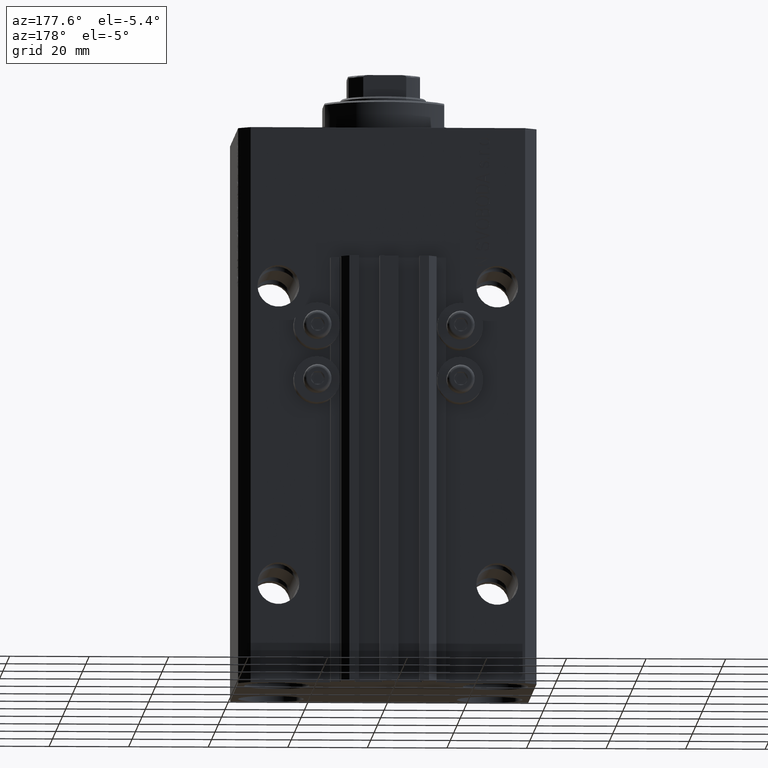
[diagram: clean part render]
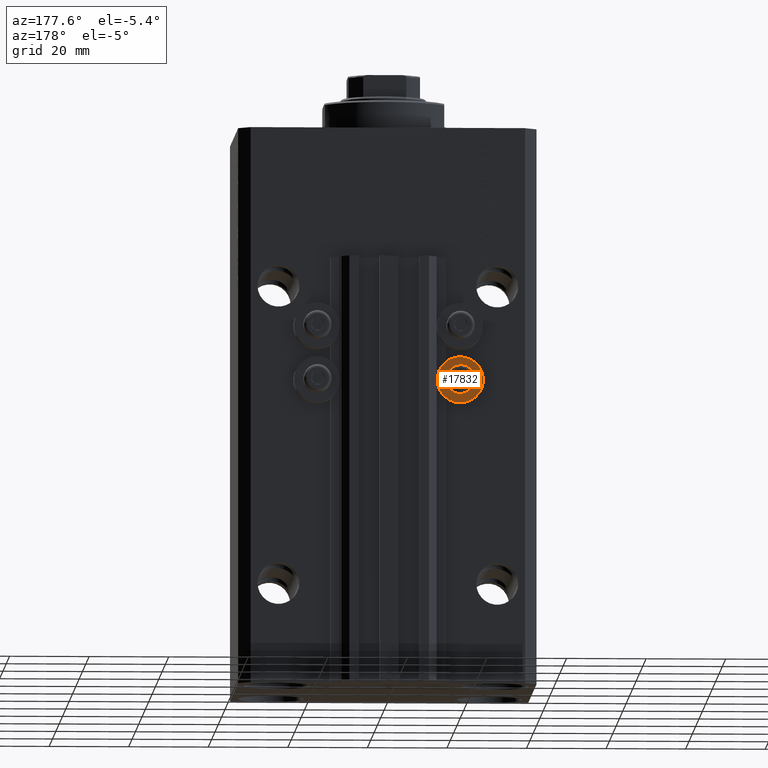
[diagram: same view with one face highlighted and labeled with its STEP entity id]
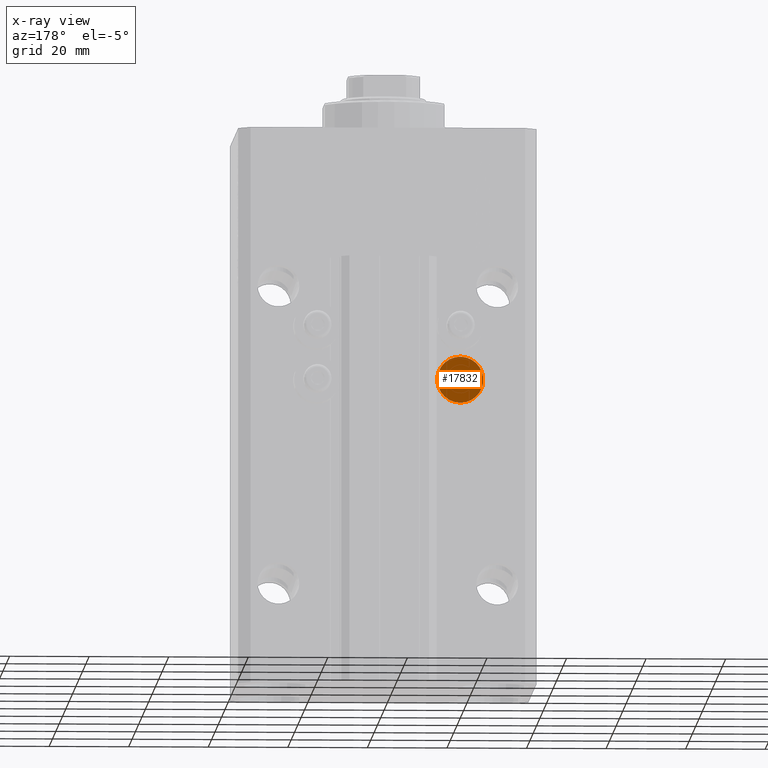
[diagram: x-ray of the same camera — body ghosted, the highlighted face saturated]
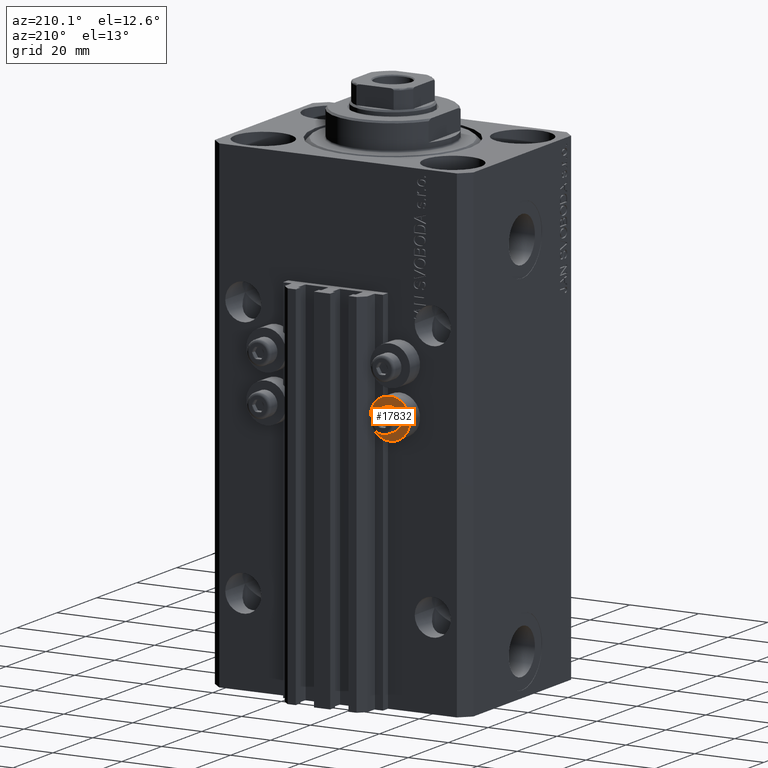
[diagram: same view with one face highlighted and labeled with its STEP entity id]
A machine part, auxiliary view. The second image highlights one B-rep face of the part: STEP entity #17832.
The next image is the same camera in x-ray: the body ghosted, the highlighted face saturated — about 0% of this face is hidden behind the body in this view.
A second angle (auxiliary view) of the same face is appended — the face is thin or edge-on in the first view.
In plain terms, the highlighted planar face has unit normal (0, -1, 0).
Its self-contained STEP definition (entity closure, byte-faithful):
#1290 = CARTESIAN_POINT ( 'NONE',  ( -18.00000000000000355, 32.49999999996100541, -64.00000000000000000 ) ) ;
#1370 = CIRCLE ( 'NONE', #39616, 5.799999999999999822 ) ;
#1922 = EDGE_CURVE ( 'NONE', #28607, #31643, #1370, .T. ) ;
#3196 = ORIENTED_EDGE ( 'NONE', *, *, #18580, .T. ) ;
#6114 = CARTESIAN_POINT ( 'NONE',  ( -18.00000000000000355, 32.49999999996100541, -58.20000000000000284 ) ) ;
#6824 = AXIS2_PLACEMENT_3D ( 'NONE', #40394, #7573, #33196 ) ;
#7573 = DIRECTION ( 'NONE',  ( -0.000000000000000000, -1.000000000000000000, -0.000000000000000000 ) ) ;
#7633 = AXIS2_PLACEMENT_3D ( 'NONE', #29559, #37688, #41052 ) ;
#8015 = ORIENTED_EDGE ( 'NONE', *, *, #32295, .F. ) ;
#10354 = EDGE_LOOP ( 'NONE', ( #8015, #43729 ) ) ;
#10874 = ORIENTED_EDGE ( 'NONE', *, *, #33972, .T. ) ;
#11002 = DIRECTION ( 'NONE',  ( -0.000000000000000000, -1.000000000000000000, -0.000000000000000000 ) ) ;
#11343 = CARTESIAN_POINT ( 'NONE',  ( -18.00000000000000355, 32.49999999996100541, -69.79999999999999716 ) ) ;
#12302 = DIRECTION ( 'NONE',  ( -0.000000000000000000, -1.000000000000000000, -0.000000000000000000 ) ) ;
#14824 = DIRECTION ( 'NONE',  ( 0.000000000000000000, 0.000000000000000000, -1.000000000000000000 ) ) ;
#15661 = DIRECTION ( 'NONE',  ( 0.000000000000000000, 0.000000000000000000, -1.000000000000000000 ) ) ;
#17169 = AXIS2_PLACEMENT_3D ( 'NONE', #37564, #38287, #31090 ) ;
#17832 = ADVANCED_FACE ( 'NONE', ( #45938, #22967 ), #45464, .F. ) ;
#18019 = CARTESIAN_POINT ( 'NONE',  ( -18.00000000000000355, 32.49999999996100541, -62.00000000000000000 ) ) ;
#18580 = EDGE_CURVE ( 'NONE', #46072, #46070, #24855, .T. ) ;
#22145 = CIRCLE ( 'NONE', #6824, 5.799999999999999822 ) ;
#22967 = FACE_OUTER_BOUND ( 'NONE', #10354, .T. ) ;
#24855 = CIRCLE ( 'NONE', #43960, 2.000000000000001776 ) ;
#28607 = VERTEX_POINT ( 'NONE', #6114 ) ;
#29480 = CARTESIAN_POINT ( 'NONE',  ( -18.00000000000000355, 32.49999999996100541, -66.00000000000000000 ) ) ;
#29559 = CARTESIAN_POINT ( 'NONE',  ( -18.00000000000000355, 32.49999999996100541, -64.00000000000000000 ) ) ;
#31090 = DIRECTION ( 'NONE',  ( 0.000000000000000000, 0.000000000000000000, 1.000000000000000000 ) ) ;
#31643 = VERTEX_POINT ( 'NONE', #11343 ) ;
#32295 = EDGE_CURVE ( 'NONE', #31643, #28607, #22145, .T. ) ;
#33196 = DIRECTION ( 'NONE',  ( 0.000000000000000000, 0.000000000000000000, -1.000000000000000000 ) ) ;
#33972 = EDGE_CURVE ( 'NONE', #46070, #46072, #37433, .T. ) ;
#37433 = CIRCLE ( 'NONE', #7633, 2.000000000000001776 ) ;
#37564 = CARTESIAN_POINT ( 'NONE',  ( -12.20000000000000284, 32.49999999996100541, -64.00000000000000000 ) ) ;
#37688 = DIRECTION ( 'NONE',  ( -0.000000000000000000, -1.000000000000000000, -0.000000000000000000 ) ) ;
#38287 = DIRECTION ( 'NONE',  ( 0.000000000000000000, -1.000000000000000000, 0.000000000000000000 ) ) ;
#39616 = AXIS2_PLACEMENT_3D ( 'NONE', #43803, #11002, #14824 ) ;
#40099 = EDGE_LOOP ( 'NONE', ( #3196, #10874 ) ) ;
#40394 = CARTESIAN_POINT ( 'NONE',  ( -18.00000000000000355, 32.49999999996100541, -64.00000000000000000 ) ) ;
#41052 = DIRECTION ( 'NONE',  ( 0.000000000000000000, 0.000000000000000000, -1.000000000000000000 ) ) ;
#43729 = ORIENTED_EDGE ( 'NONE', *, *, #1922, .F. ) ;
#43803 = CARTESIAN_POINT ( 'NONE',  ( -18.00000000000000355, 32.49999999996100541, -64.00000000000000000 ) ) ;
#43960 = AXIS2_PLACEMENT_3D ( 'NONE', #1290, #12302, #15661 ) ;
#45464 = PLANE ( 'NONE',  #17169 ) ;
#45938 = FACE_BOUND ( 'NONE', #40099, .T. ) ;
#46070 = VERTEX_POINT ( 'NONE', #29480 ) ;
#46072 = VERTEX_POINT ( 'NONE', #18019 ) ;